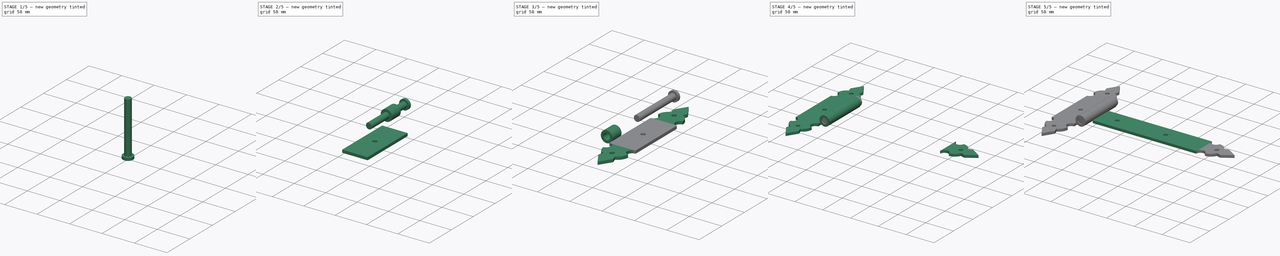
[diagram: build sequence overview — one tinted view per stage of 5, left to right]
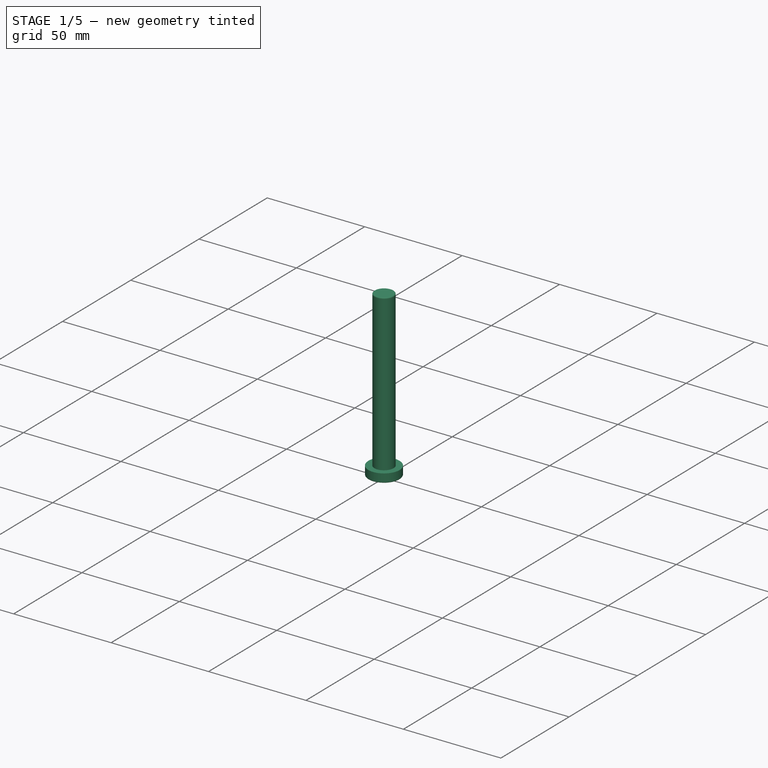
[diagram: stage 1 of 5 — iso view after this stage's code; geometry added in this stage tinted green]
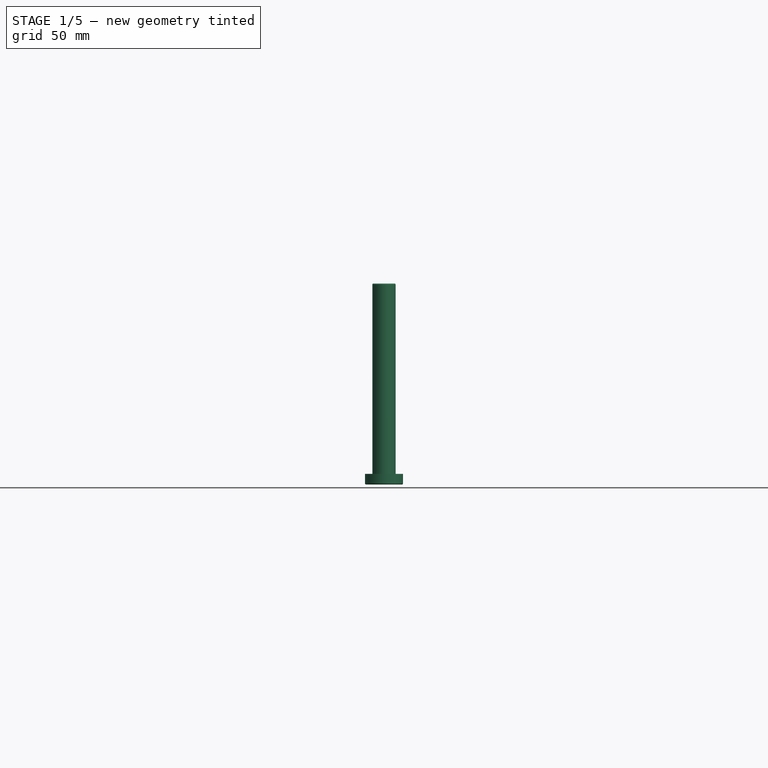
[diagram: stage 1 of 5 — front view after this stage's code; geometry added in this stage tinted green]
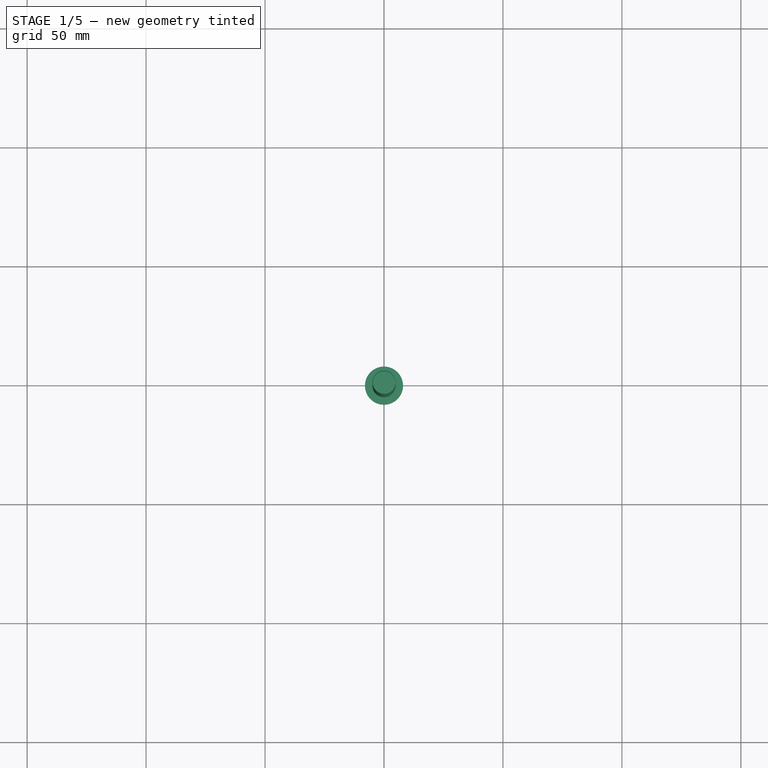
[diagram: stage 1 of 5 — top view after this stage's code; geometry added in this stage tinted green]
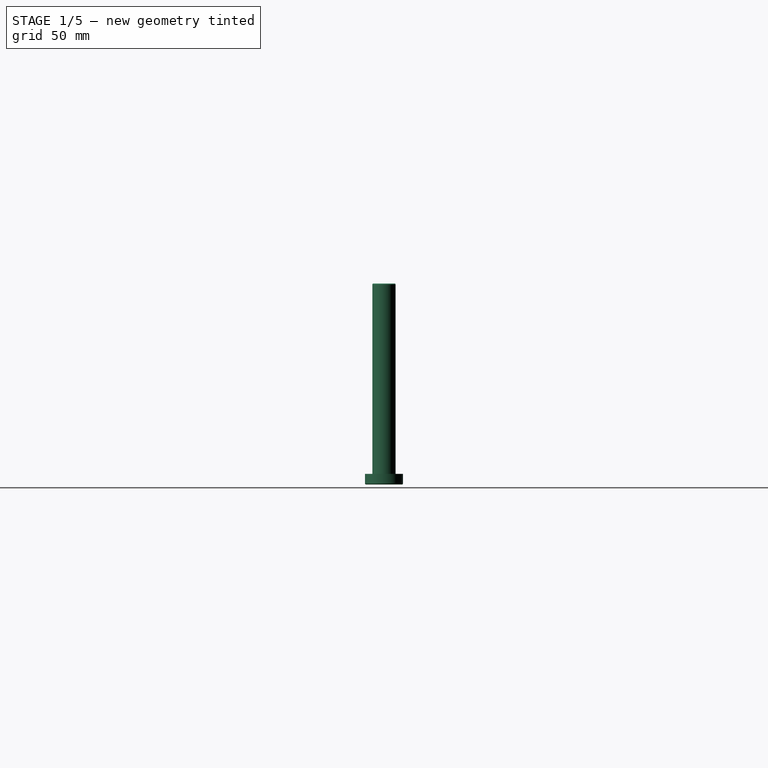
[diagram: stage 1 of 5 — right view after this stage's code; geometry added in this stage tinted green]
FCSTD DOCUMENT  (FreeCAD 0.16R6707 (Git))
Label: Montaje_Bisagra
License: All rights reserved
LicenseURL: http://en.wikipedia.org/wiki/All_rights_reserved
objects: Part::FeaturePython×7, Sketcher::SketchObject×6, PartDesign::Pad×6, Part::MultiFuse×3, App::DocumentObjectGroup×3, Part::Cylinder×2, Part::Mirroring×1, Part::Fillet×1, PartDesign::Fillet×1
note: 33 computed .brp shape members not serialized (recipe doc carries the construction recipe); baked Part::Feature solids carry a one-line shape summary decoded from their .brp

FEATURE [App::DocumentObjectGroup] Grupo001  label="Pletina Pared"
  Group = -> [Pad004,Pad003,Pad005,Fusion001]
FEATURE [Part::Cylinder] Cylinder  label="Cilindro"
  Angle = 360
  Height = 4.5
  Radius = 8
FEATURE [Part::Cylinder] Cylinder001  label="Cilindro001"
  Angle = 360
  Height = 80
  Placement = pos=(0,0,4.5) rot=(0,0,1;0rad)
  Radius = 4.9
FEATURE [Part::Fillet] Fillet
  Base = -> Cylinder
  Edges = 1 edges r=0.5: [Edge3]
FEATURE [PartDesign::Fillet] Fillet001
  Base = -> Cylinder001 [Edge1]
  Placement = pos=(0,0,4.5) rot=(0,0,1;0rad)
  Radius = 0.5
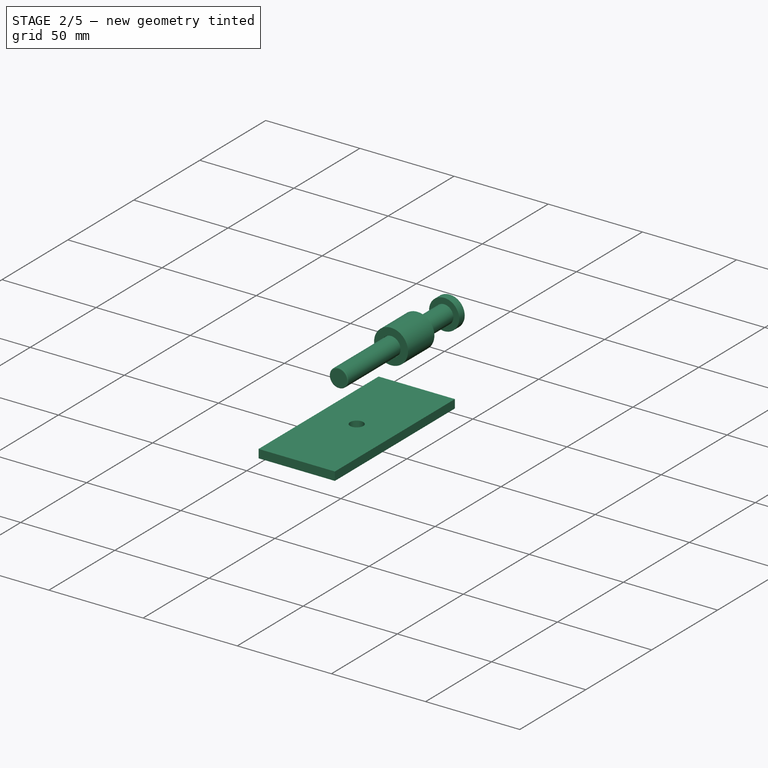
[diagram: stage 2 of 5 — iso view after this stage's code; geometry added in this stage tinted green]
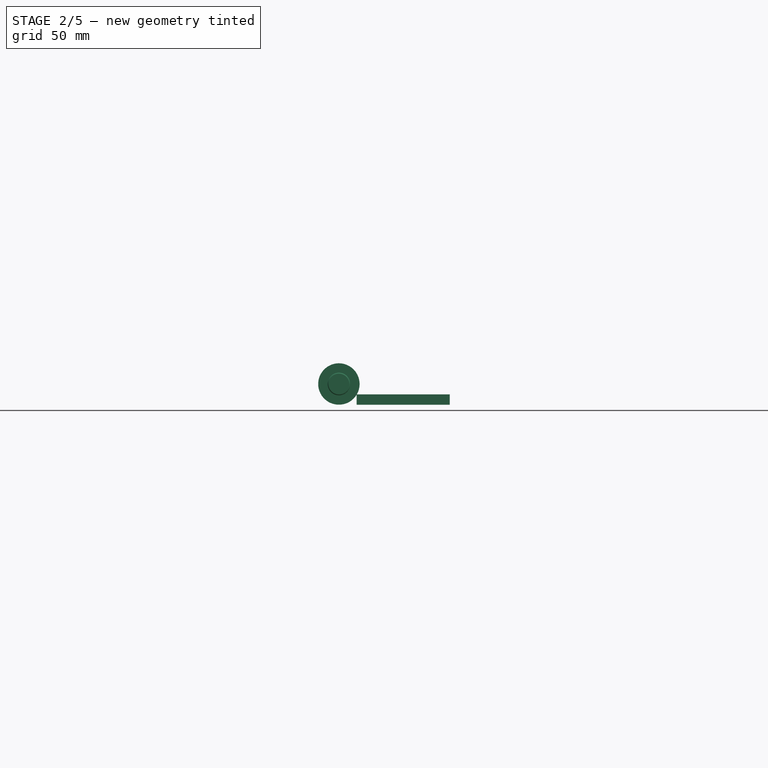
[diagram: stage 2 of 5 — front view after this stage's code; geometry added in this stage tinted green]
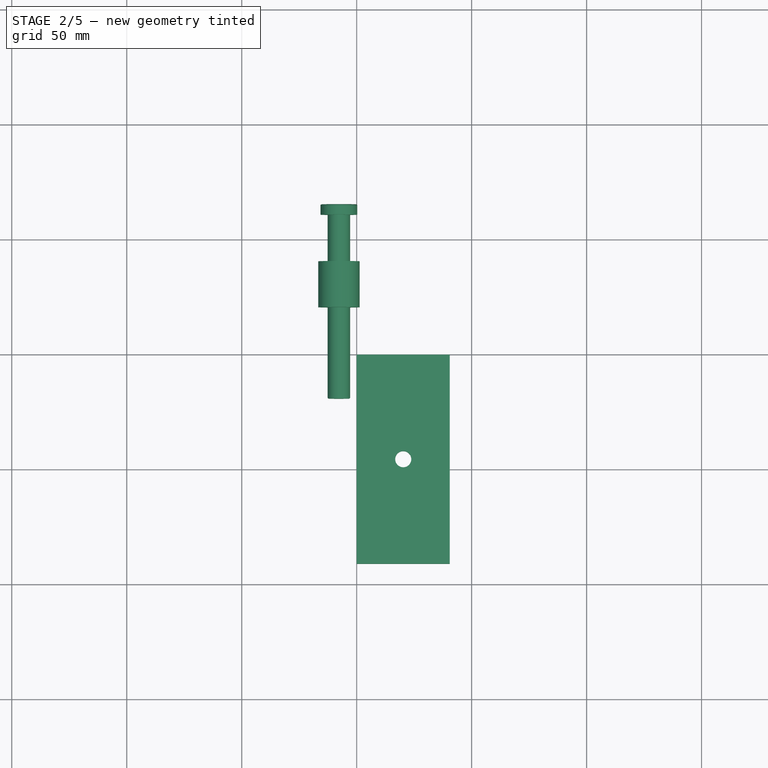
[diagram: stage 2 of 5 — top view after this stage's code; geometry added in this stage tinted green]
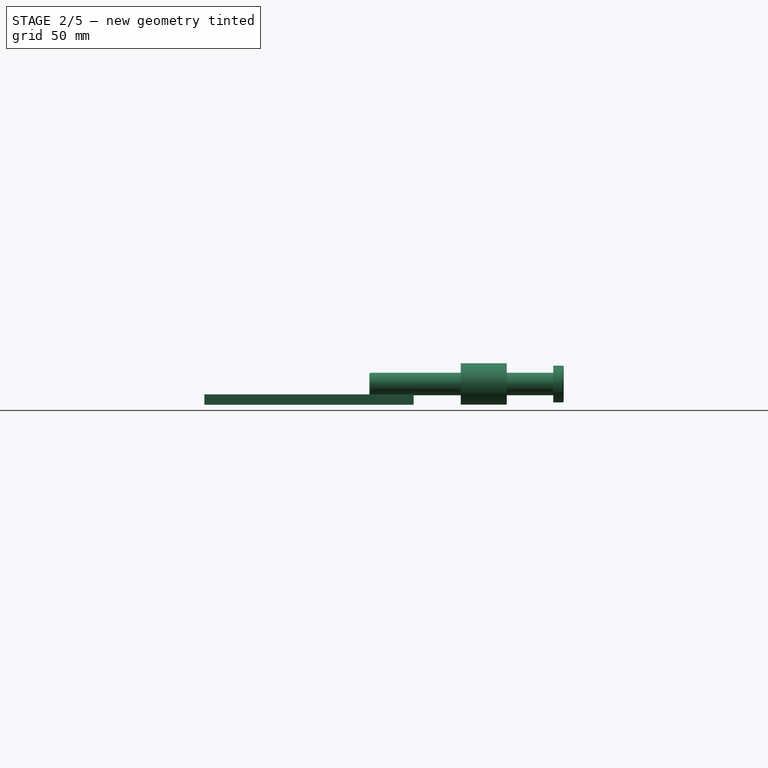
[diagram: stage 2 of 5 — right view after this stage's code; geometry added in this stage tinted green]
FEATURE [Sketcher::SketchObject] Sketch004
  sketch-geometry (6):
    g0: LineSegment StartX=0 StartY=0 StartZ=0 EndX=40.5 EndY=0 EndZ=0
    g1: LineSegment StartX=40.5 StartY=0 StartZ=0 EndX=40.5 EndY=-91 EndZ=0
    g2: LineSegment StartX=40.5 StartY=-91 StartZ=0 EndX=0 EndY=-91 EndZ=0
    g3: LineSegment StartX=0 StartY=-91 StartZ=0 EndX=0 EndY=0 EndZ=0
    g4: LineSegment [constr] StartX=20.25 StartY=0 StartZ=0 EndX=20.25 EndY=-91 EndZ=0
    g5: Circle CenterX=20.25 CenterY=-45.5 CenterZ=0 NormalX=0 NormalY=0 NormalZ=1 Radius=3.5
  constraints (18):
    c: Coincident(g0,g1)
    c: Coincident(g1,g2)
    c: Coincident(g2,g3)
    c: Coincident(g3,g0)
    c: Horizontal(g0)
    c: Horizontal(g2)
    c: Vertical(g1)
    c: Vertical(g3)
    c: Coincident(g0,g-1)
    c: DistanceX(g2) = -40.5
    c: DistanceY(g3) = 91
    c: PointOnObject(g4,g0)
    c: PointOnObject(g4,g2)
    c: Vertical(g4)
    c: Symmetric(g-1,g0,g4)
    c: PointOnObject(g5,g4)
    c: Radius(g5) = 3.5
    c: Symmetric(g4,g4,g5)
FEATURE [PartDesign::Pad] Pad004
  Length = 4.5
  Length2 = 100
  Sketch = -> Sketch004
  Type = 0
FEATURE [Sketcher::SketchObject] Sketch005
  Placement = pos=(0,40.5,0) rot=(0,0.707107,0.707107;3.14159rad)
  sketch-geometry (2):
    g0: Circle CenterX=7.73563 CenterY=9 CenterZ=0 NormalX=0 NormalY=0 NormalZ=1 Radius=9
    g1: Circle CenterX=7.73563 CenterY=9 CenterZ=0 NormalX=0 NormalY=0 NormalZ=1 Radius=5.05
  constraints (4):
    c: Coincident(g1,g0)
    c: Radius(g1) = 5.05
    c: DistanceY(g-1,g0) = 9
    c: Radius(g0) = 9
FEATURE [PartDesign::Pad] Pad005  label="Burlete001"
  Length = 20
  Length2 = 100
  Placement = pos=(0,40.5,0) rot=(0,0.707107,0.707107;3.14159rad)
  Reversed = true
  Sketch = -> Sketch005
  Type = 0
FEATURE [Part::FeaturePython] Clone006  label="Clone of Pad"  # Draft clone (typed FeaturePython)
  Objects = -> [Pad004]
  Scale = (1,1,1)
FEATURE [Part::MultiFuse] Fusion002
  Placement = pos=(-7.73563,65.25,9) rot=(1,0,0;1.5708rad)
  Shapes = -> [Fillet001,Fillet]
FEATURE [App::DocumentObjectGroup] Grupo002  label="Bulon"
  Group = -> [Cylinder001,Fusion002]
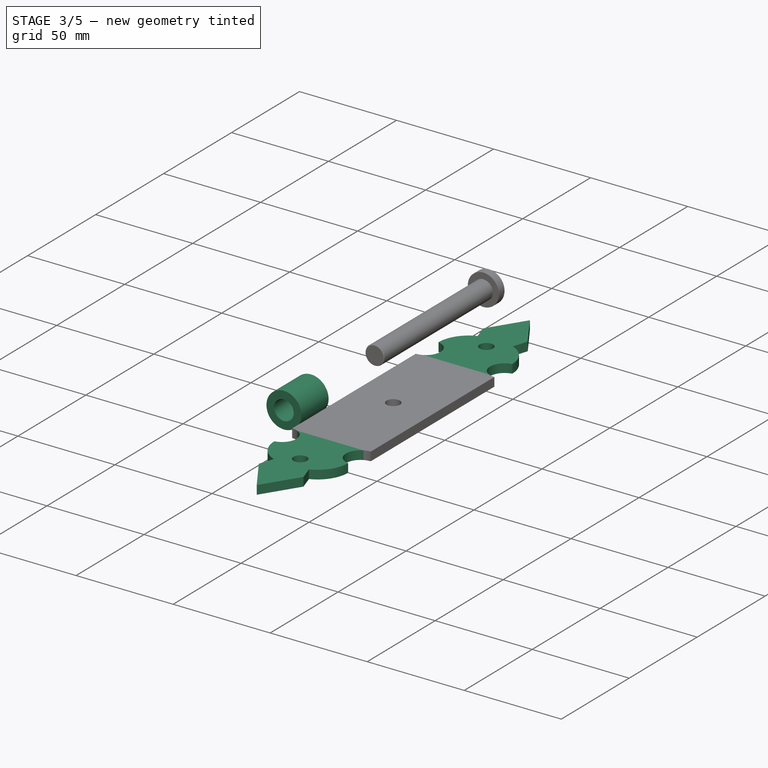
[diagram: stage 3 of 5 — iso view after this stage's code; geometry added in this stage tinted green]
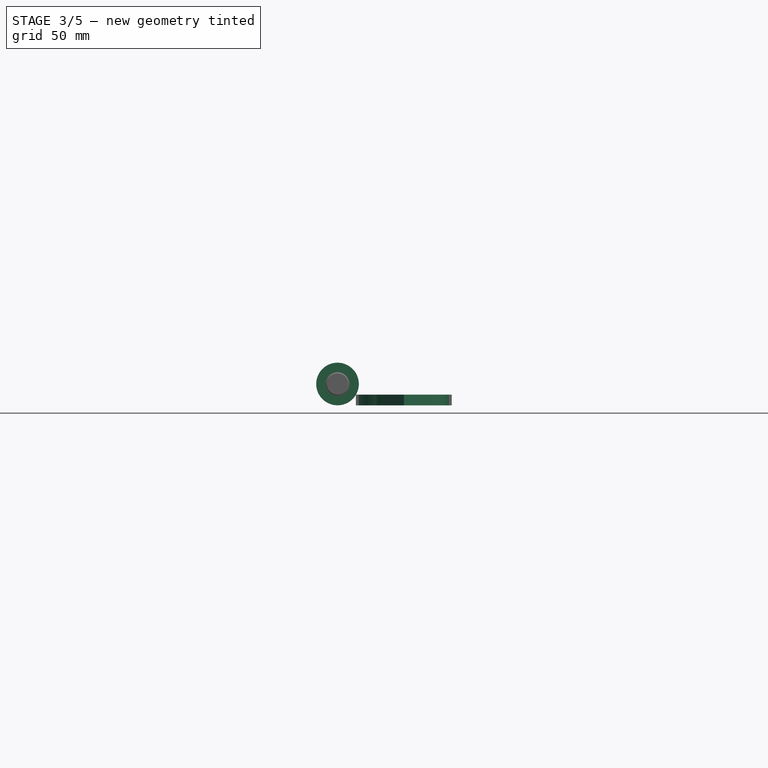
[diagram: stage 3 of 5 — front view after this stage's code; geometry added in this stage tinted green]
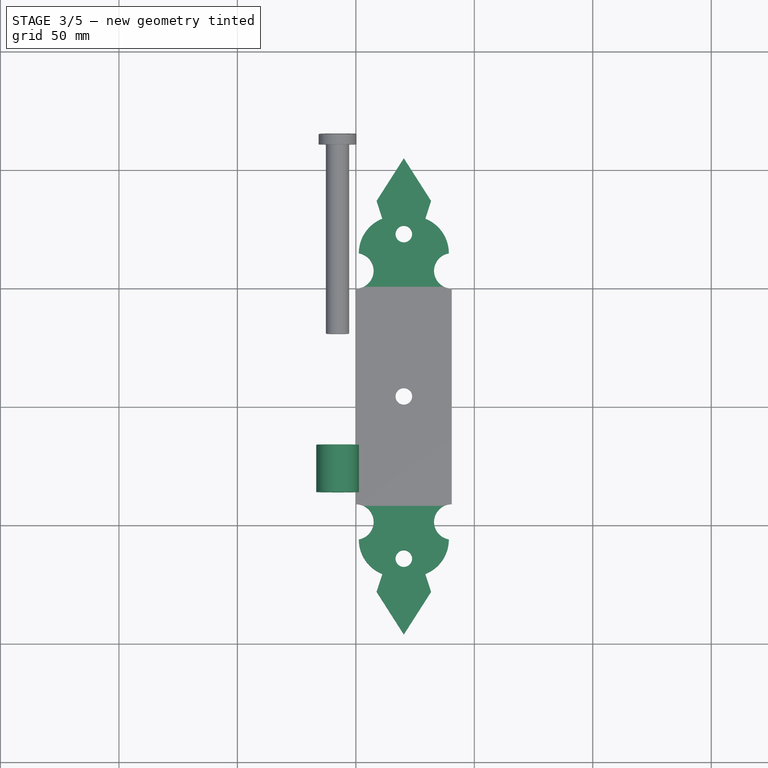
[diagram: stage 3 of 5 — top view after this stage's code; geometry added in this stage tinted green]
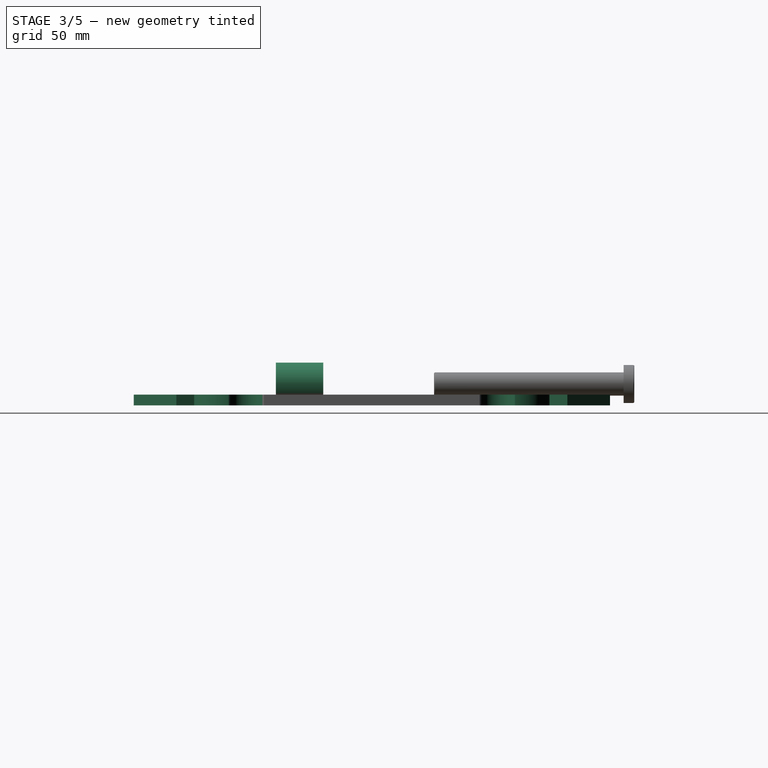
[diagram: stage 3 of 5 — right view after this stage's code; geometry added in this stage tinted green]
FEATURE [App::DocumentObjectGroup] Grupo  label="Pletina Larga"
  Group = -> [Pad001,Pad002,Fusion,Pad]
FEATURE [Sketcher::SketchObject] Sketch003
  sketch-geometry (14):
    g0: LineSegment StartX=186 StartY=0 StartZ=0 EndX=186 EndY=40.5 EndZ=0
    g1: ArcOfCircle CenterX=193.5 CenterY=40.5 CenterZ=0 NormalX=0 NormalY=0 NormalZ=1 Radius=7.5 StartAngle=3.14159 EndAngle=6.11574
    g2: ArcOfCircle CenterX=193.5 CenterY=0 CenterZ=0 NormalX=0 NormalY=0 NormalZ=1 Radius=7.5 StartAngle=0.167448 EndAngle=3.14159
    g3: LineSegment [constr] StartX=200.895 StartY=39.25 StartZ=0 EndX=200.895 EndY=1.25 EndZ=0
    g4: ArcOfCircle CenterX=200.895 CenterY=23.5563 CenterZ=0 NormalX=0 NormalY=0 NormalZ=1 Radius=15.6937 StartAngle=0.374696 EndAngle=1.5708
    g5: ArcOfCircle CenterX=200.895 CenterY=16.9437 CenterZ=0 NormalX=0 NormalY=0 NormalZ=1 Radius=15.6937 StartAngle=4.71239 EndAngle=5.90849
    g6: LineSegment [constr] StartX=215.5 StartY=29.3 StartZ=0 EndX=215.5 EndY=11.2 EndZ=0
    g7: LineSegment [constr] StartX=186 StartY=20.25 StartZ=0 EndX=241 EndY=20.25 EndZ=0
    g8: LineSegment [constr] StartX=223 StartY=31.75 StartZ=0 EndX=223 EndY=8.75 EndZ=0
    g9: LineSegment StartX=223 StartY=31.75 StartZ=0 EndX=241 EndY=20.25 EndZ=0
    g10: LineSegment StartX=241 StartY=20.25 StartZ=0 EndX=223 EndY=8.75 EndZ=0
    g11: LineSegment StartX=223 StartY=8.75 StartZ=0 EndX=215.5 EndY=11.2 EndZ=0
    g12: LineSegment StartX=223 StartY=31.75 StartZ=0 EndX=215.5 EndY=29.3 EndZ=0
    g13: Circle CenterX=209 CenterY=20.25 CenterZ=0 NormalX=0 NormalY=0 NormalZ=1 Radius=3.5
  constraints (41):
    c: Vertical(g0)
    c: DistanceY(g0) = 40.5
    c: PointOnObject(g0,g-1)
    c: DistanceX(g-1,g0) = 186
    c: Coincident(g1,g0)
    c: PointOnObject(g2,g-1)
    c: Coincident(g2,g0)
    c: Equal(g2,g1)
    c: Radius(g2) = 7.5
    c: PointOnObject(g7,g0)
    c: Coincident(g3,g1)
    c: Coincident(g3,g2)
    c: DistanceY(g3) = -38
    c: Coincident(g4,g1)
    c: Coincident(g5,g2)
    c: PointOnObject(g5,g3)
    c: PointOnObject(g4,g3)
    c: Coincident(g6,g4)
    c: Coincident(g6,g5)
    c: Vertical(g6)
    c: DistanceY(g6) = -18.1
    c: Symmetric(g5,g4,g7)
    c: DistanceX(g0,g4) = 29.5
    c: DistanceX(g7) = 55
    c: Vertical(g8)
    c: DistanceY(g8) = -23
    c: Symmetric(g8,g8,g7)
    c: DistanceX(g8,g7) = 18
    c: Coincident(g9,g7)
    c: Coincident(g9,g10)
    c: Coincident(g10,g8)
    c: Coincident(g10,g11)
    c: Coincident(g11,g5)
    c: Coincident(g12,g8)
    c: Coincident(g12,g4)
    c: Coincident(g9,g8)
    c: Symmetric(g0,g0,g7)
    c: Symmetric(g1,g2,g7)
    c: PointOnObject(g13,g7)
    c: DistanceX(g7,g13) = -32
    c: Radius(g13) = 3.5
FEATURE [PartDesign::Pad] Pad003  label="Terminal001"
  Length = 4.5
  Length2 = 100
  Sketch = -> Sketch003
  Type = 0
FEATURE [Part::FeaturePython] Clone003  label="Clone of Terminal001"  # Draft clone (typed FeaturePython)
  Objects = -> [Pad003]
  Placement = pos=(40.5,-186,0) rot=(0,0,1;1.5708rad)
  Scale = (1,1,1)
FEATURE [Part::FeaturePython] Clone004  label="Clone of Terminal002"  # Draft clone (typed FeaturePython)
  Objects = -> [Pad003]
  Placement = pos=(0,95,0) rot=(0,0,-1;1.5708rad)
  Scale = (1,1,1)
FEATURE [Part::FeaturePython] Clone005  label="Clone of Burlete001"  # Draft clone (typed FeaturePython)
  Objects = -> [Pad005]
  Placement = pos=(0,-5,0) rot=(0,0.707107,0.707107;3.14159rad)
  Scale = (1,1,1)
FEATURE [Part::Mirroring] mirror  label="Mirror of Clone of Burlete"
  Base = (16.75,-45.5,0)
  Normal = (0,-1,0)
  Source = -> Clone005
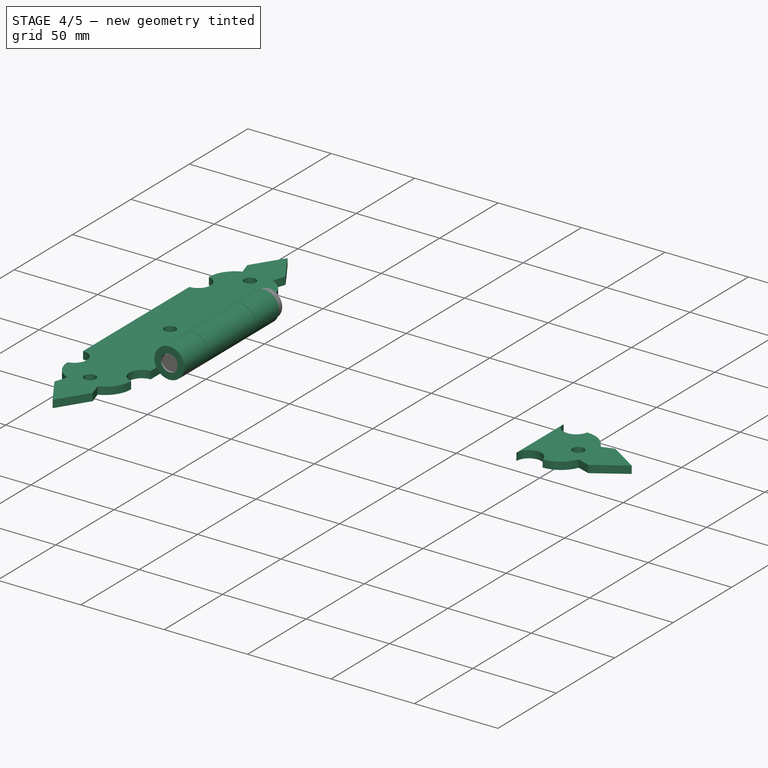
[diagram: stage 4 of 5 — iso view after this stage's code; geometry added in this stage tinted green]
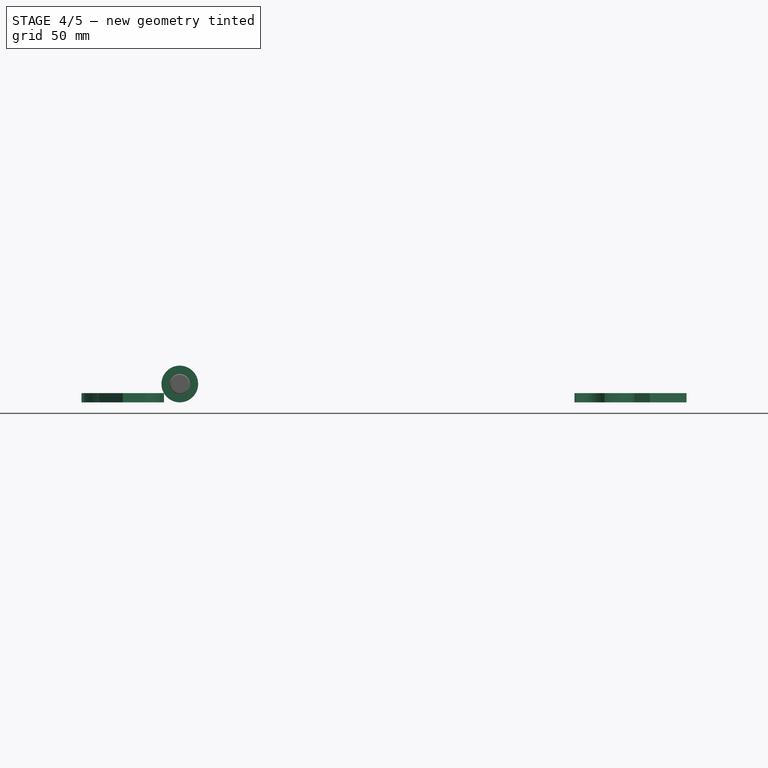
[diagram: stage 4 of 5 — front view after this stage's code; geometry added in this stage tinted green]
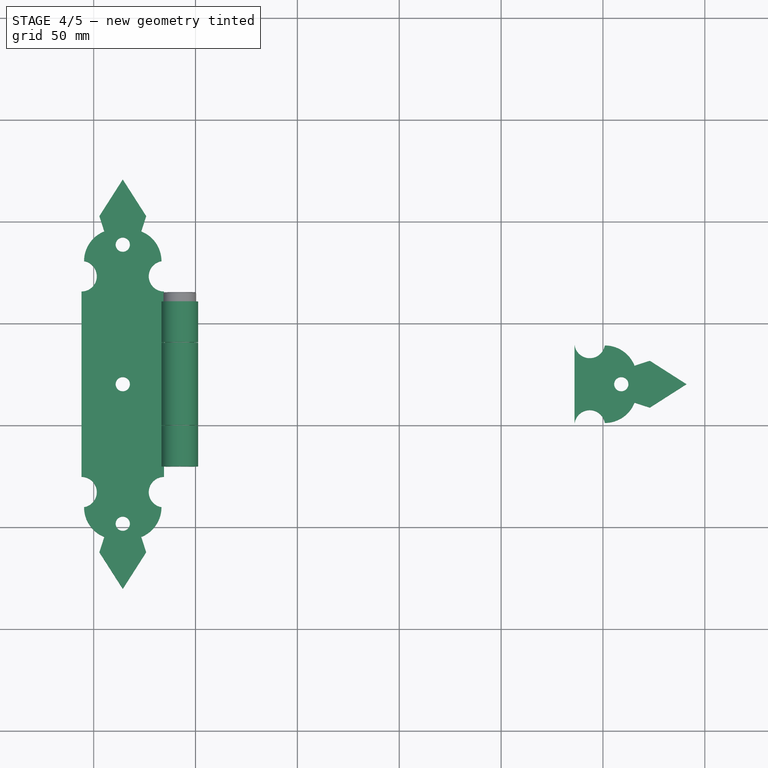
[diagram: stage 4 of 5 — top view after this stage's code; geometry added in this stage tinted green]
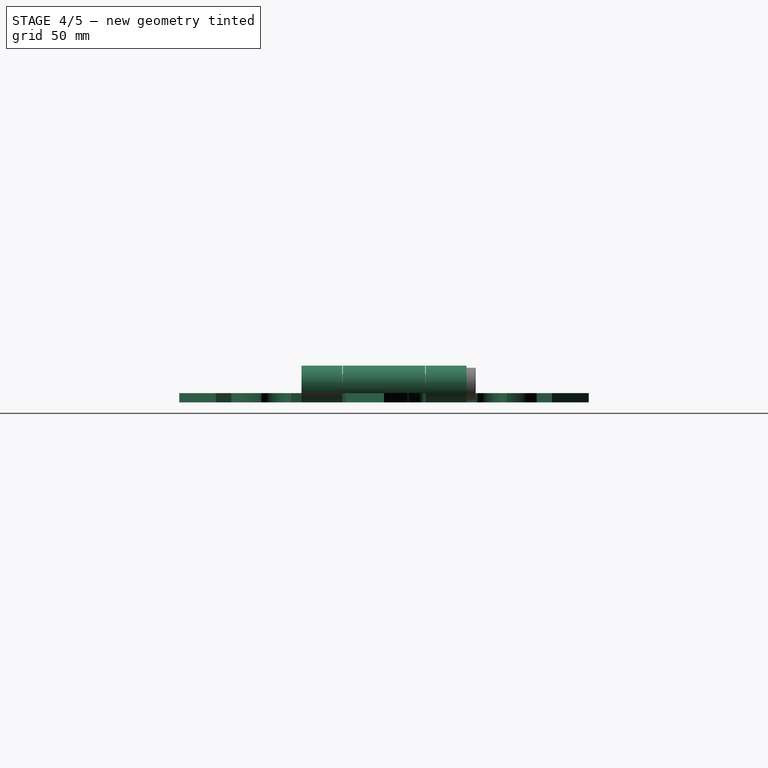
[diagram: stage 4 of 5 — right view after this stage's code; geometry added in this stage tinted green]
FEATURE [Sketcher::SketchObject] Sketch001
  sketch-geometry (14):
    g0: LineSegment StartX=186 StartY=0 StartZ=0 EndX=186 EndY=40.5 EndZ=0
    g1: ArcOfCircle CenterX=193.5 CenterY=40.5 CenterZ=0 NormalX=0 NormalY=0 NormalZ=1 Radius=7.5 StartAngle=3.14159 EndAngle=6.11574
    g2: ArcOfCircle CenterX=193.5 CenterY=0 CenterZ=0 NormalX=0 NormalY=0 NormalZ=1 Radius=7.5 StartAngle=0.167448 EndAngle=3.14159
    g3: LineSegment [constr] StartX=200.895 StartY=39.25 StartZ=0 EndX=200.895 EndY=1.25 EndZ=0
    g4: ArcOfCircle CenterX=200.895 CenterY=23.5563 CenterZ=0 NormalX=0 NormalY=0 NormalZ=1 Radius=15.6937 StartAngle=0.374696 EndAngle=1.5708
    g5: ArcOfCircle CenterX=200.895 CenterY=16.9437 CenterZ=0 NormalX=0 NormalY=0 NormalZ=1 Radius=15.6937 StartAngle=4.71239 EndAngle=5.90849
    g6: LineSegment [constr] StartX=215.5 StartY=29.3 StartZ=0 EndX=215.5 EndY=11.2 EndZ=0
    g7: LineSegment [constr] StartX=186 StartY=20.25 StartZ=0 EndX=241 EndY=20.25 EndZ=0
    g8: LineSegment [constr] StartX=223 StartY=31.75 StartZ=0 EndX=223 EndY=8.75 EndZ=0
    g9: LineSegment StartX=223 StartY=31.75 StartZ=0 EndX=241 EndY=20.25 EndZ=0
    g10: LineSegment StartX=241 StartY=20.25 StartZ=0 EndX=223 EndY=8.75 EndZ=0
    g11: LineSegment StartX=223 StartY=8.75 StartZ=0 EndX=215.5 EndY=11.2 EndZ=0
    g12: LineSegment StartX=223 StartY=31.75 StartZ=0 EndX=215.5 EndY=29.3 EndZ=0
    g13: Circle CenterX=209 CenterY=20.25 CenterZ=0 NormalX=0 NormalY=0 NormalZ=1 Radius=3.5
  constraints (41):
    c: Vertical(g0)
    c: DistanceY(g0) = 40.5
    c: PointOnObject(g0,g-1)
    c: DistanceX(g-1,g0) = 186
    c: Coincident(g1,g0)
    c: PointOnObject(g2,g-1)
    c: Coincident(g2,g0)
    c: Equal(g2,g1)
    c: Radius(g2) = 7.5
    c: PointOnObject(g7,g0)
    c: Coincident(g3,g1)
    c: Coincident(g3,g2)
    c: DistanceY(g3) = -38
    c: Coincident(g4,g1)
    c: Coincident(g5,g2)
    c: PointOnObject(g5,g3)
    c: PointOnObject(g4,g3)
    c: Coincident(g6,g4)
    c: Coincident(g6,g5)
    c: Vertical(g6)
    c: DistanceY(g6) = -18.1
    c: Symmetric(g5,g4,g7)
    c: DistanceX(g0,g4) = 29.5
    c: DistanceX(g7) = 55
    c: Vertical(g8)
    c: DistanceY(g8) = -23
    c: Symmetric(g8,g8,g7)
    c: DistanceX(g8,g7) = 18
    c: Coincident(g9,g7)
    c: Coincident(g9,g10)
    c: Coincident(g10,g8)
    c: Coincident(g10,g11)
    c: Coincident(g11,g5)
    c: Coincident(g12,g8)
    c: Coincident(g12,g4)
    c: Coincident(g9,g8)
    c: Symmetric(g0,g0,g7)
    c: Symmetric(g1,g2,g7)
    c: PointOnObject(g13,g7)
    c: DistanceX(g7,g13) = -32
    c: Radius(g13) = 3.5
FEATURE [PartDesign::Pad] Pad001  label="Terminal"
  Length = 4.5
  Length2 = 100
  Sketch = -> Sketch001
  Type = 0
FEATURE [Sketcher::SketchObject] Sketch002
  Placement = pos=(0,40.5,0) rot=(0,0.707107,0.707107;3.14159rad)
  sketch-geometry (2):
    g0: Circle CenterX=7.73563 CenterY=9 CenterZ=0 NormalX=0 NormalY=0 NormalZ=1 Radius=9
    g1: Circle CenterX=7.73563 CenterY=9 CenterZ=0 NormalX=0 NormalY=0 NormalZ=1 Radius=5.05
  constraints (4):
    c: Coincident(g1,g0)
    c: Radius(g1) = 5.05
    c: DistanceY(g-1,g0) = 9
    c: Radius(g0) = 9
FEATURE [PartDesign::Pad] Pad002  label="Burlete"
  Length = 40.5
  Length2 = 100
  Placement = pos=(0,40.5,0) rot=(0,0.707107,0.707107;3.14159rad)
  Reversed = true
  Sketch = -> Sketch002
  Type = 0
FEATURE [Part::FeaturePython] Clone002  label="Clone of Burlete"  # Draft clone (typed FeaturePython)
  Objects = -> [Pad002]
  Placement = pos=(0,40.5,0) rot=(0,0.707107,0.707107;3.14159rad)
  Scale = (1,1,1)
FEATURE [Part::MultiFuse] Fusion001
  Placement = pos=(-15.4713,-25.25,0) rot=(0,0,1;3.14159rad)
  Shapes = -> [Clone006,Clone005,mirror,Clone004,Clone003]
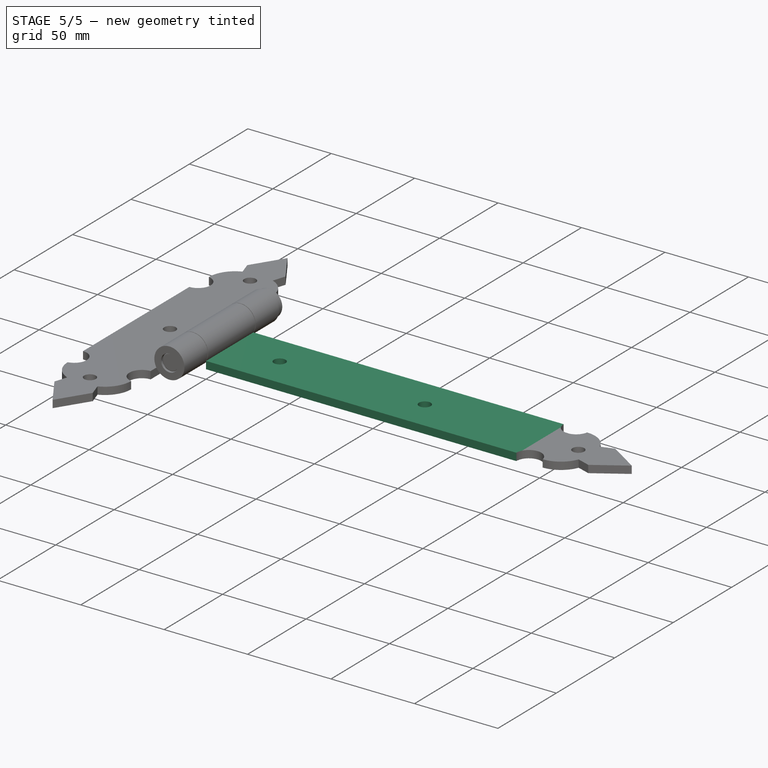
[diagram: stage 5 of 5 — iso view after this stage's code; geometry added in this stage tinted green]
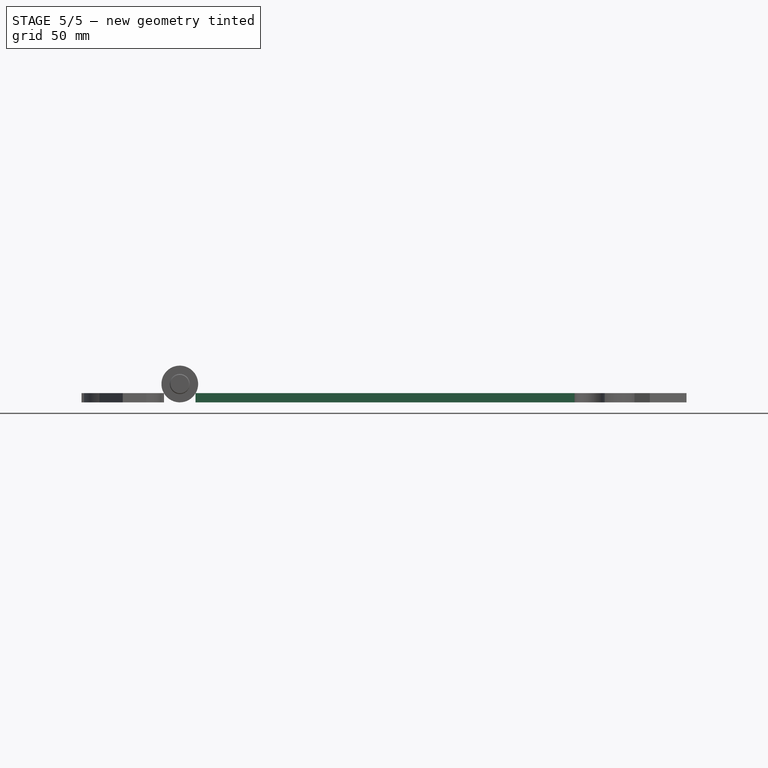
[diagram: stage 5 of 5 — front view after this stage's code; geometry added in this stage tinted green]
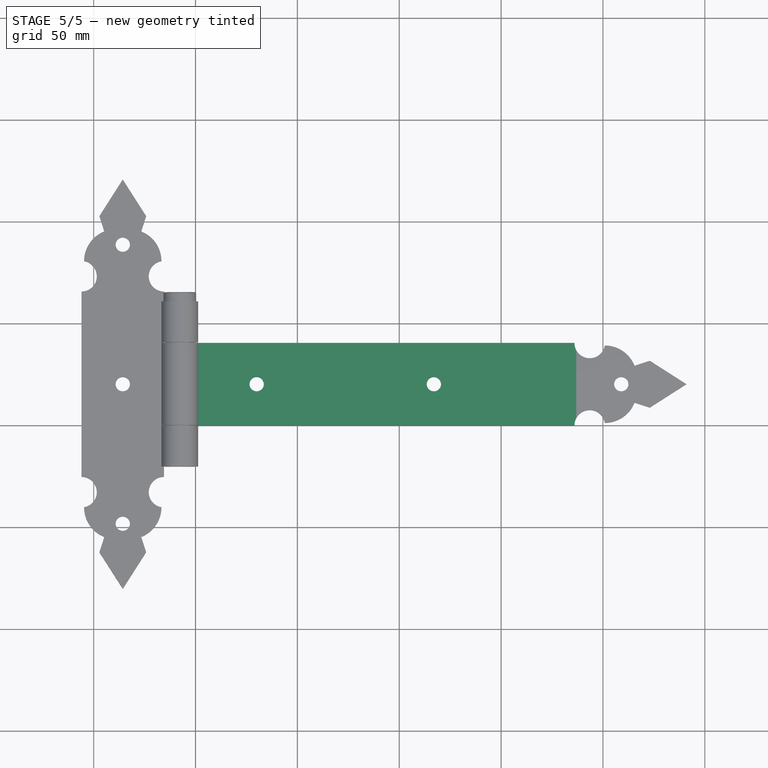
[diagram: stage 5 of 5 — top view after this stage's code; geometry added in this stage tinted green]
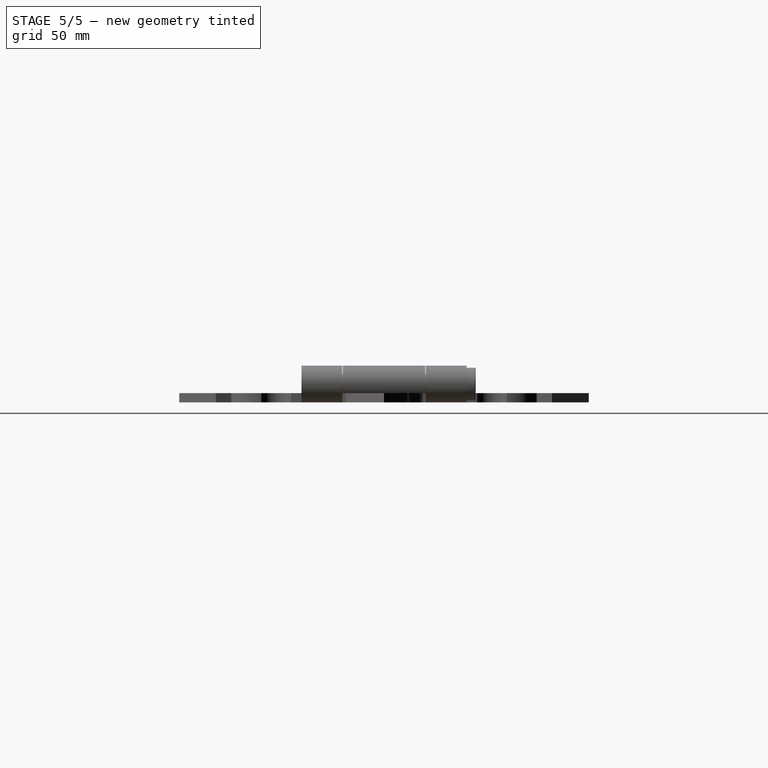
[diagram: stage 5 of 5 — right view after this stage's code; geometry added in this stage tinted green]
FEATURE [Sketcher::SketchObject] Sketch
  sketch-geometry (7):
    g0: LineSegment StartX=0 StartY=0 StartZ=0 EndX=186 EndY=0 EndZ=0
    g1: LineSegment StartX=186 StartY=0 StartZ=0 EndX=186 EndY=40.5 EndZ=0
    g2: LineSegment StartX=186 StartY=40.5 StartZ=0 EndX=0 EndY=40.5 EndZ=0
    g3: LineSegment StartX=0 StartY=40.5 StartZ=0 EndX=0 EndY=0 EndZ=0
    g4: Circle CenterX=30 CenterY=20.25 CenterZ=0 NormalX=0 NormalY=0 NormalZ=1 Radius=3.5
    g5: Circle CenterX=117 CenterY=20.25 CenterZ=0 NormalX=0 NormalY=0 NormalZ=1 Radius=3.5
    g6: LineSegment [constr] StartX=0 StartY=20.25 StartZ=0 EndX=186 EndY=20.25 EndZ=0
  constraints (21):
    c: Coincident(g0,g1)
    c: Coincident(g1,g2)
    c: Coincident(g2,g3)
    c: Coincident(g3,g0)
    c: Horizontal(g0)
    c: Horizontal(g2)
    c: Vertical(g1)
    c: Vertical(g3)
    c: Coincident(g0,g-1)
    c: DistanceY(g3) = -40.5
    c: DistanceX(g2) = -186
    c: PointOnObject(g6,g3)
    c: PointOnObject(g6,g1)
    c: Horizontal(g6)
    c: Symmetric(g2,g-1,g6)
    c: PointOnObject(g4,g6)
    c: PointOnObject(g5,g6)
    c: Equal(g4,g5)
    c: Radius(g4) = 3.5
    c: DistanceX(g4,g6) = -30
    c: DistanceX(g5,g4) = -87
FEATURE [PartDesign::Pad] Pad  label="Pletina"
  Length = 4.5
  Length2 = 100
  Sketch = -> Sketch
  Type = 0
FEATURE [Part::FeaturePython] Clone  label="Clone of Pletina"  # Draft clone (typed FeaturePython)
  Objects = -> [Pad]
  Scale = (1,1,1)
FEATURE [Part::FeaturePython] Clone001  label="Clone of Terminal"  # Draft clone (typed FeaturePython)
  Objects = -> [Pad001]
  Scale = (1,1,1)
FEATURE [Part::MultiFuse] Fusion
  Shapes = -> [Clone002,Clone001,Clone]
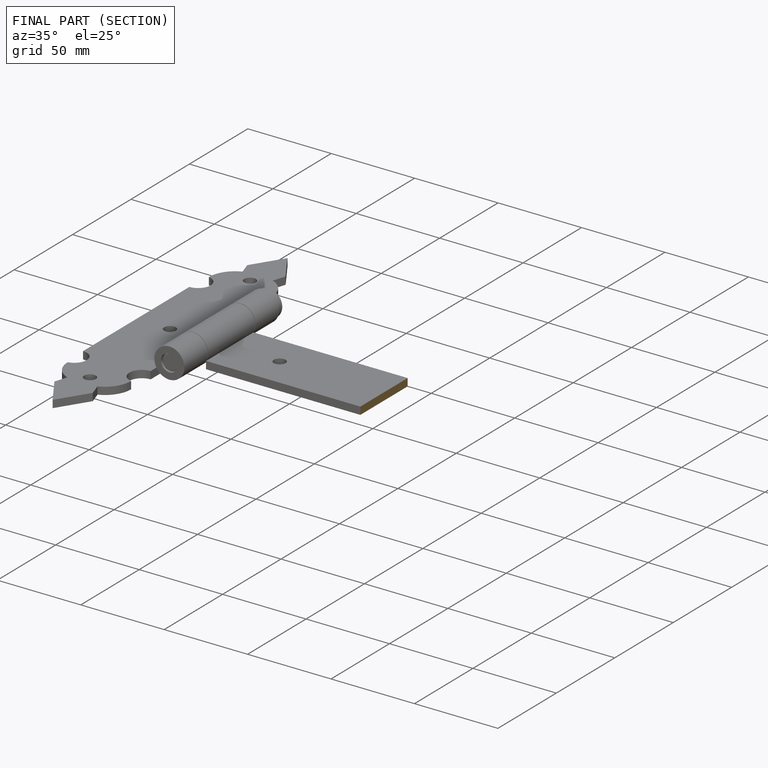
[diagram: finished part — half-section view (interior)]
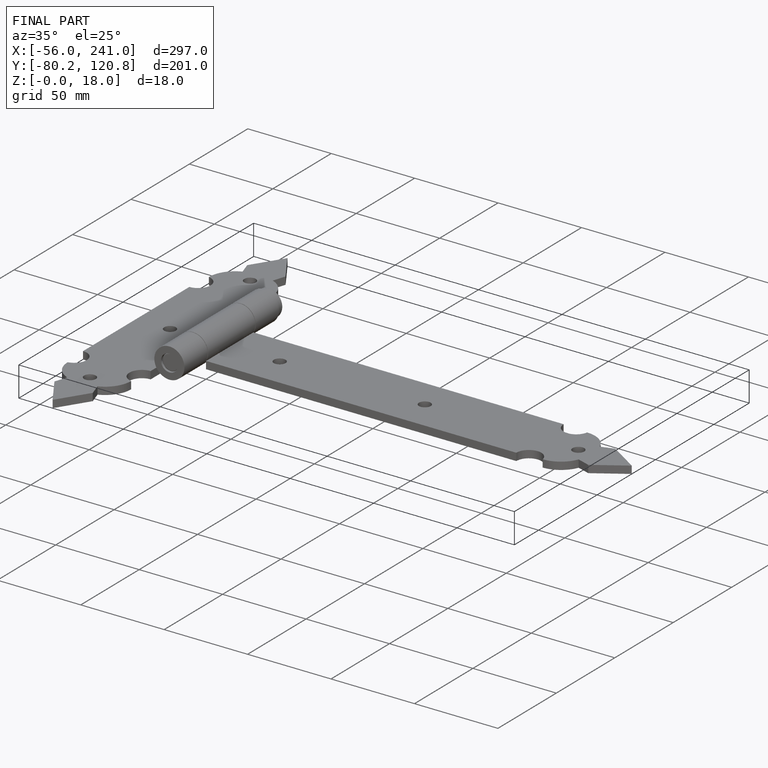
[diagram: finished part — iso view with bounding-box wireframe]
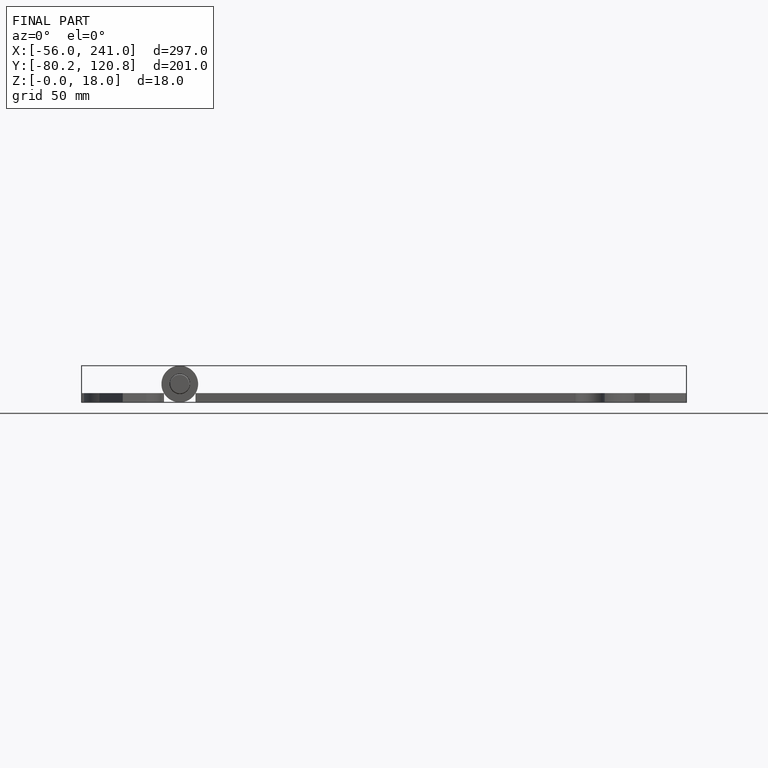
[diagram: finished part — front view with bounding-box wireframe]
